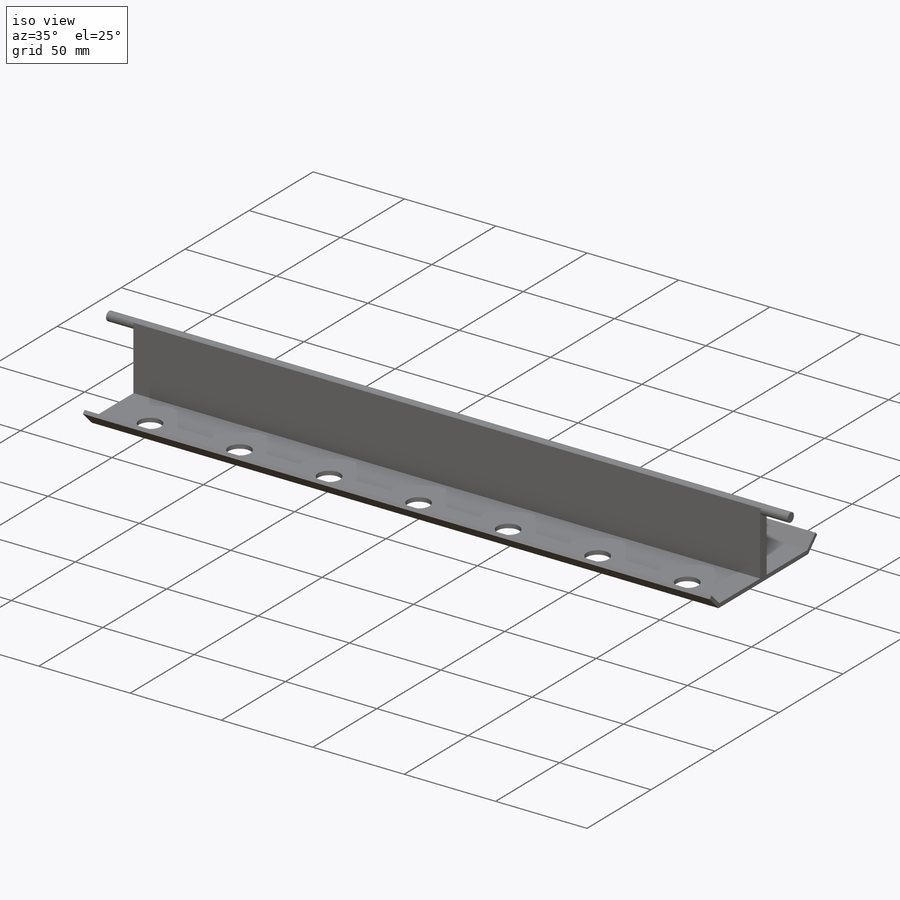
[diagram: iso view]
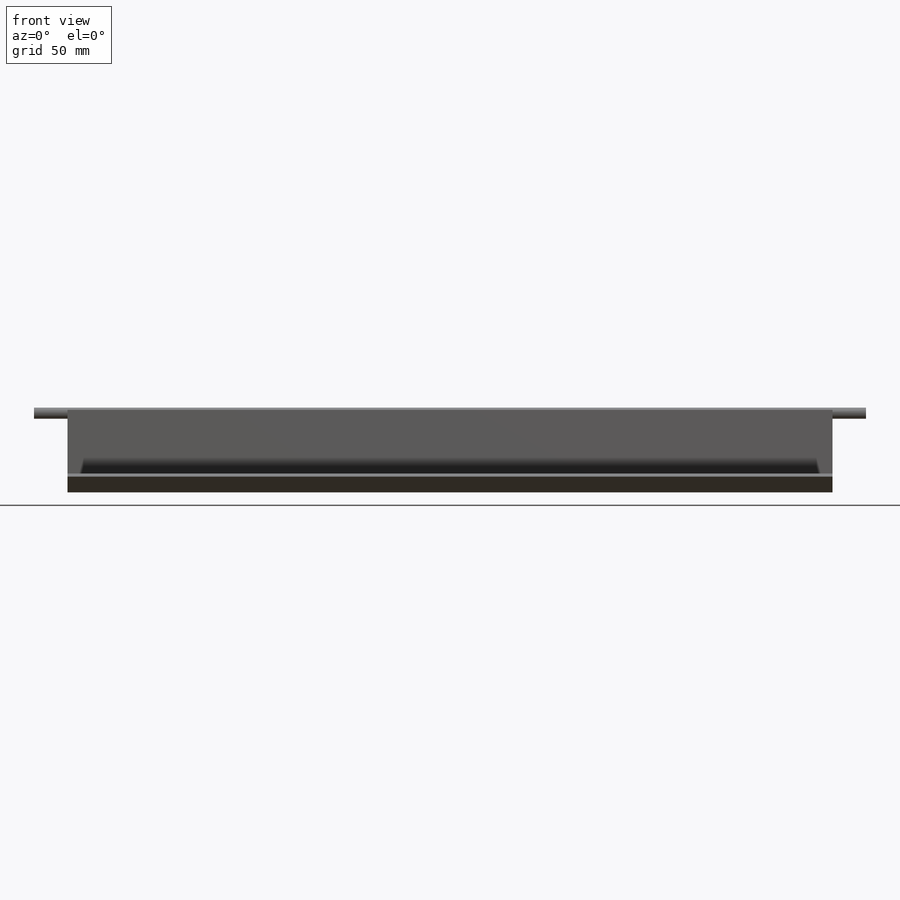
[diagram: front view]
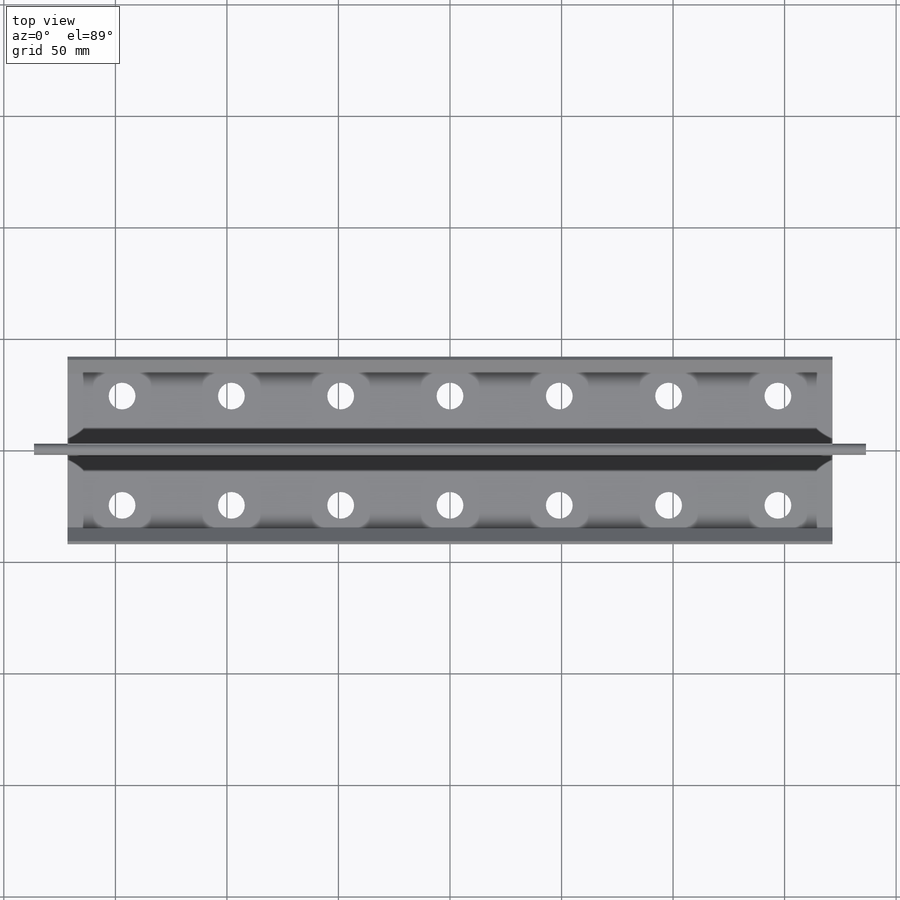
[diagram: top view]
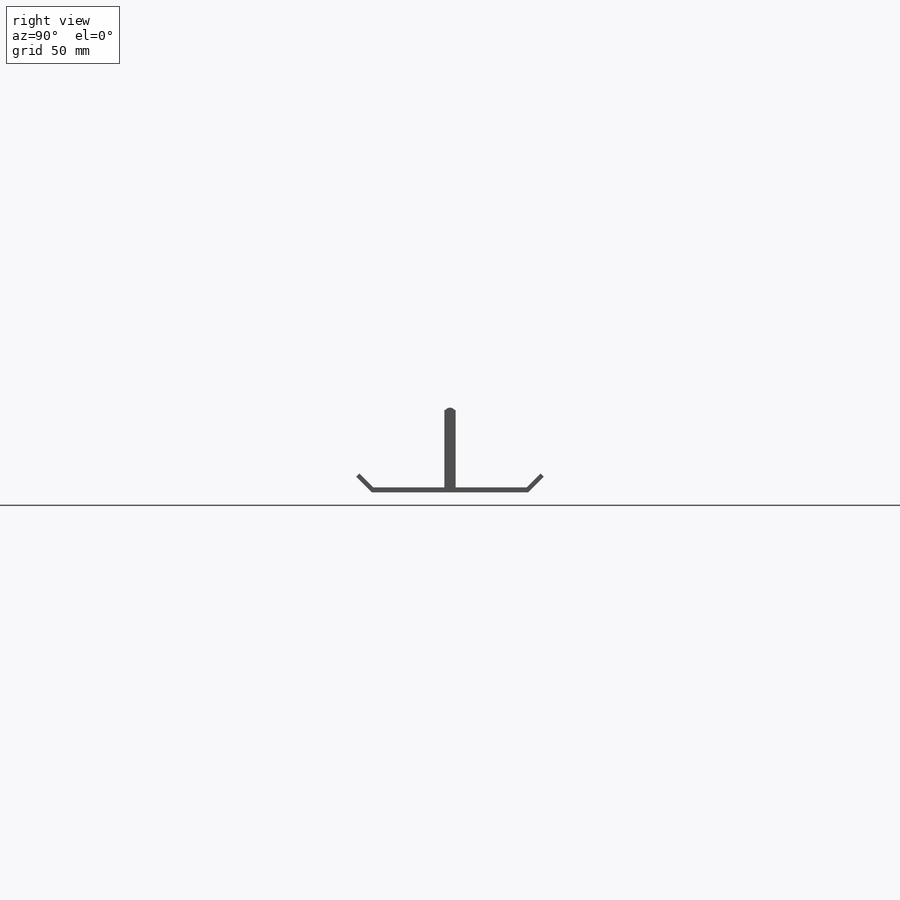
[diagram: right view]
SOLIDWORKS PART (.sldprt)
format: sldprt  version: not decoded by parser v0  size: 229,376 bytes
history: native  units: mm
features: sketch x4, extrude x3, material x1, cut_extrude x1 (+13 scaffold rows collapsed)
feature tree (22):
  scaffold x13  (default folders/planes/origin — collapsed)
  material  "Material <not specified>"
  sketch  "Sketch3"  dims[D1=343.0mm D2=5.0mm]
  extrude  "Boss-Extrude1"  Depth=35mm
  sketch  "Sketch6"  dims[D1=1.5mm]
  extrude  "Boss-Extrude3"  Depth=15mm
  sketch  "Sketch7"  dims[c1.D1=70.0mm c1.D2=35.0mm c1.D3=2.0mm c1.D4=~8.660254mm c1.D5=60.0deg c2.D4=2.0mm c2.D5=45.0deg c3.D4=10.0mm]
  extrude  "Boss-Extrude4"  [1 undecoded]
  sketch  "Sketch8"  dims[c1.D2=12.0mm c1.D3=~7.806833mm c1.D1=24.5mm c2.D3=49.0mm c2.D4=49.0mm c2.D5=49.0mm]
  cut_extrude  "Cut-Extrude1"  [1 undecoded]
decode coverage: 6 of 8 modeling features carry decoded parameters
note: ~ marks probable driven/reference dimensions
note: 2 parameter values undecoded
note: suppression state not decoded; provenance and decode notes live in map.json
